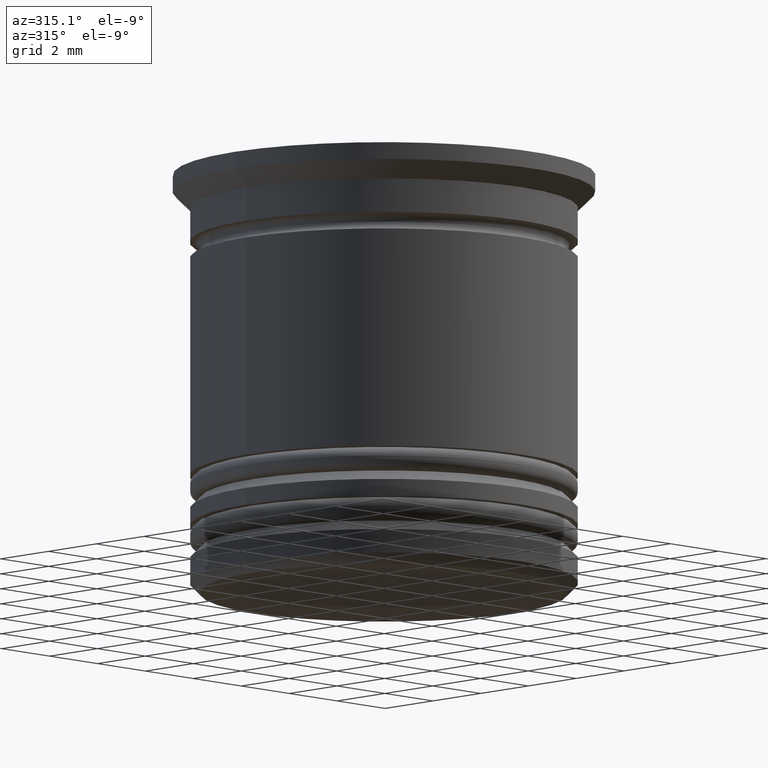
[diagram: clean part render]
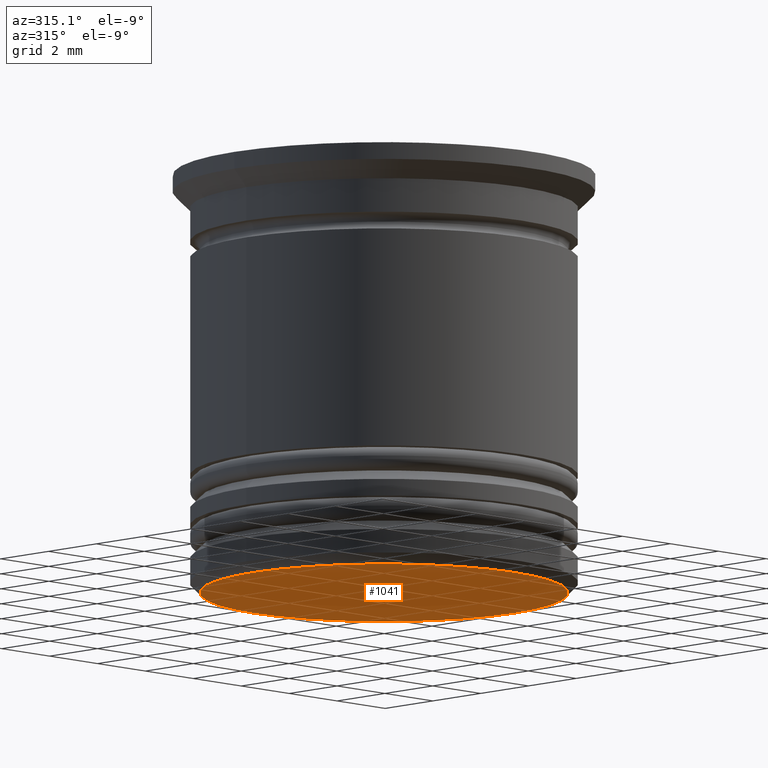
[diagram: same view with one face highlighted and labeled with its STEP entity id]
A machine part, auxiliary view. The second image highlights one B-rep face of the part: STEP entity #1041.
In plain terms, the highlighted planar face has unit normal (0, 0, -1).
Its self-contained STEP definition (entity closure, byte-faithful):
#26 = FACE_OUTER_BOUND ( 'NONE', #1828, .T. ) ;
#184 = EDGE_CURVE ( 'NONE', #859, #351, #1686, .T. ) ;
#249 = CARTESIAN_POINT ( 'NONE',  ( 0.000000000000000000, 0.000000000000000000, -12.50000000000000000 ) ) ;
#255 = AXIS2_PLACEMENT_3D ( 'NONE', #576, #890, #1497 ) ;
#351 = VERTEX_POINT ( 'NONE', #1000 ) ;
#394 = DIRECTION ( 'NONE',  ( -1.000000000000000000, 0.000000000000000000, 0.000000000000000000 ) ) ;
#441 = ORIENTED_EDGE ( 'NONE', *, *, #801, .T. ) ;
#486 = CIRCLE ( 'NONE', #1880, 5.449999999999995737 ) ;
#573 = DIRECTION ( 'NONE',  ( 0.000000000000000000, 0.000000000000000000, -1.000000000000000000 ) ) ;
#576 = CARTESIAN_POINT ( 'NONE',  ( 0.000000000000000000, 0.000000000000000000, -12.50000000000000000 ) ) ;
#648 = CARTESIAN_POINT ( 'NONE',  ( 0.000000000000000000, 5.750000000000000888, -12.50000000000000000 ) ) ;
#783 = DIRECTION ( 'NONE',  ( -1.000000000000000000, 0.000000000000000000, -0.000000000000000000 ) ) ;
#801 = EDGE_CURVE ( 'NONE', #351, #859, #486, .T. ) ;
#859 = VERTEX_POINT ( 'NONE', #1233 ) ;
#890 = DIRECTION ( 'NONE',  ( 0.000000000000000000, 0.000000000000000000, -1.000000000000000000 ) ) ;
#948 = DIRECTION ( 'NONE',  ( 0.000000000000000000, 0.000000000000000000, -1.000000000000000000 ) ) ;
#1000 = CARTESIAN_POINT ( 'NONE',  ( -5.449999999999995737, 6.858022075225175594E-16, -12.50000000000000000 ) ) ;
#1040 = ORIENTED_EDGE ( 'NONE', *, *, #184, .T. ) ;
#1041 = ADVANCED_FACE ( 'NONE', ( #26 ), #1088, .T. ) ;
#1088 = PLANE ( 'NONE',  #1249 ) ;
#1233 = CARTESIAN_POINT ( 'NONE',  ( 5.449999999999995737, 0.000000000000000000, -12.50000000000000000 ) ) ;
#1249 = AXIS2_PLACEMENT_3D ( 'NONE', #648, #948, #783 ) ;
#1497 = DIRECTION ( 'NONE',  ( -1.000000000000000000, 0.000000000000000000, 0.000000000000000000 ) ) ;
#1686 = CIRCLE ( 'NONE', #255, 5.449999999999995737 ) ;
#1828 = EDGE_LOOP ( 'NONE', ( #1040, #441 ) ) ;
#1880 = AXIS2_PLACEMENT_3D ( 'NONE', #249, #573, #394 ) ;